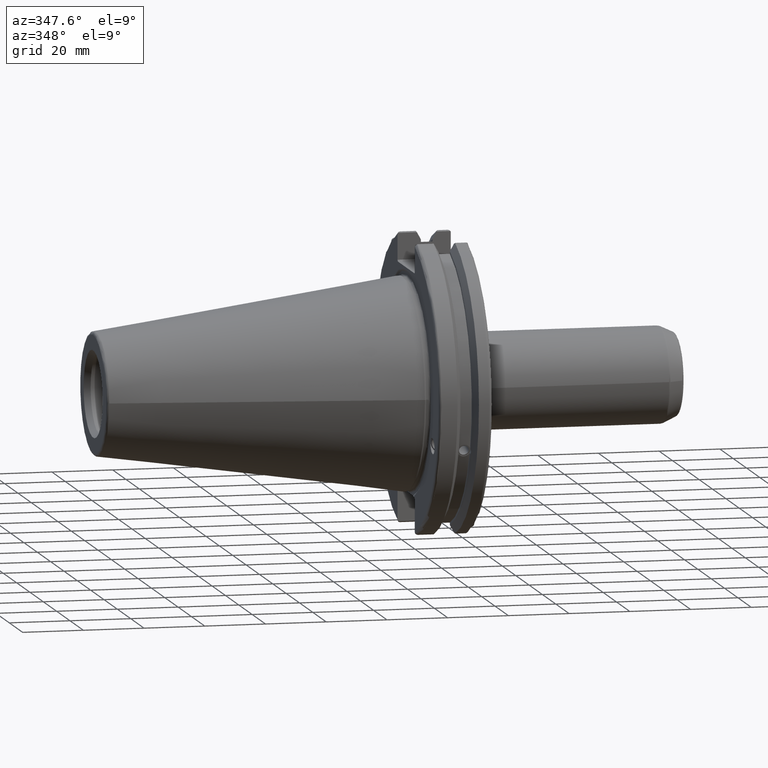
[diagram: clean part render]
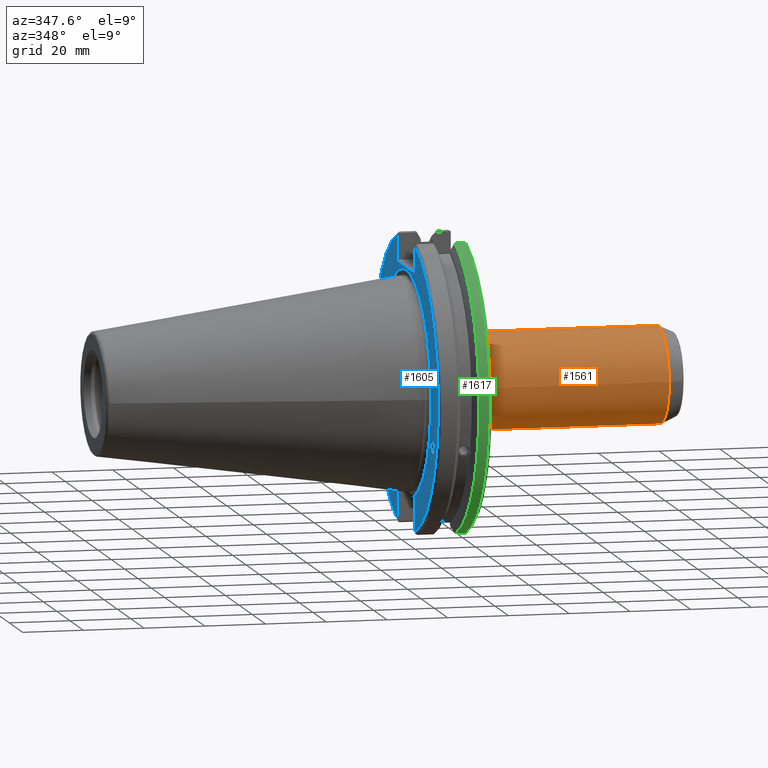
[diagram: same view with three faces highlighted in distinct colors, each labeled with its STEP entity id]
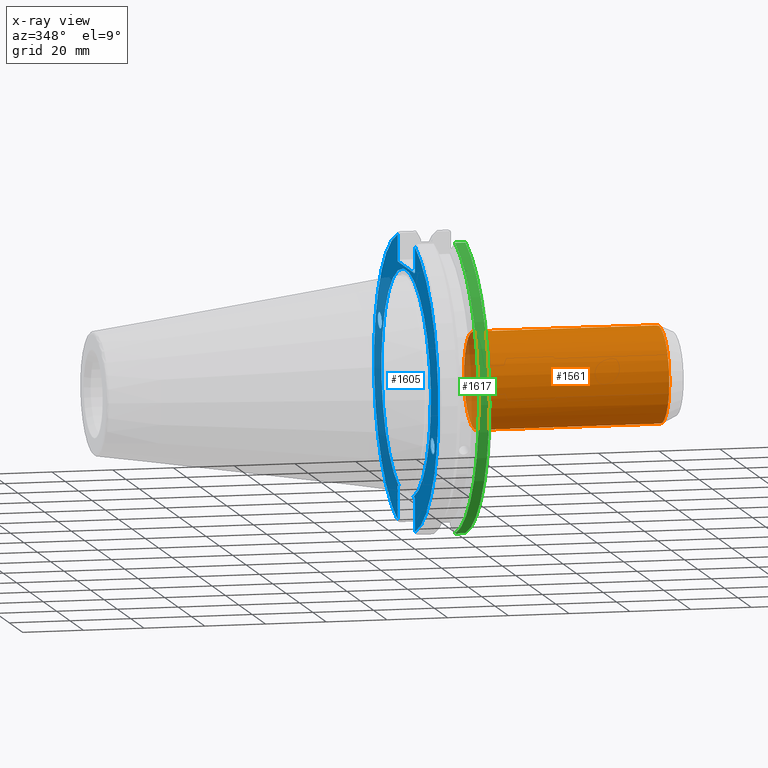
[diagram: x-ray of the same camera — body ghosted, the three highlighted faces saturated]
A machine part, auxiliary view with three faces highlighted in distinct colors.
The next image is the same camera in x-ray (body ghosted, the three faces saturated) — at least one of them is partly hidden behind the body in this view.
Their STEP definitions:

[orange] entity #1561 — the highlighted cylindrical surface (bore or boss wall) has radius 15.875 mm, axis along (1, 0, 0).
#62=FACE_BOUND('',#222,.T.);
#128=FACE_OUTER_BOUND('',#221,.T.);
#221=EDGE_LOOP('',(#1084,#1085,#1086,#1087,#1088,#1089));
#222=EDGE_LOOP('',(#1090,#1091));
#322=B_SPLINE_CURVE_WITH_KNOTS('',3,(#2347,#2348,#2349,#2350,#2351,#2352,
#2353,#2354,#2355,#2356,#2357,#2358,#2359,#2360,#2361,#2362,#2363,#2364,
#2365,#2366,#2367,#2368,#2369,#2370,#2371,#2372),.UNSPECIFIED.,.F.,.F.,
(4,2,2,2,2,2,2,2,2,2,2,2,4),(0.,0.223638021490026,0.447276042980052,0.680504531406411,
0.913733019832769,1.14696150825913,1.38018999668549,1.60382801817551,1.82746603966554,
2.05110406115556,2.27474208264559,2.50797057107195,2.74119905949831),
 .UNSPECIFIED.);
#323=B_SPLINE_CURVE_WITH_KNOTS('',3,(#2373,#2374,#2375,#2376,#2377,#2378,
#2379,#2380,#2381,#2382),.UNSPECIFIED.,.F.,.F.,(4,2,2,2,4),(2.74119905949831,
2.97442754792467,3.20765603635103,3.43129405784105,3.65493207933108),
 .UNSPECIFIED.);
#368=LINE('',#2418,#462);
#462=VECTOR('',#1899,15.875);
#566=CIRCLE('',#1688,15.875);
#567=CIRCLE('',#1689,15.875);
#568=CIRCLE('',#1691,15.875);
#569=CIRCLE('',#1692,15.875);
#640=VERTEX_POINT('',#2344);
#641=VERTEX_POINT('',#2346);
#651=VERTEX_POINT('',#2411);
#652=VERTEX_POINT('',#2413);
#653=VERTEX_POINT('',#2417);
#654=VERTEX_POINT('',#2419);
#805=EDGE_CURVE('',#641,#640,#322,.T.);
#806=EDGE_CURVE('',#640,#641,#323,.T.);
#821=EDGE_CURVE('',#651,#652,#566,.T.);
#822=EDGE_CURVE('',#652,#651,#567,.T.);
#823=EDGE_CURVE('',#652,#653,#368,.T.);
#824=EDGE_CURVE('',#654,#653,#568,.T.);
#825=EDGE_CURVE('',#653,#654,#569,.T.);
#1084=ORIENTED_EDGE('',*,*,#822,.F.);
#1085=ORIENTED_EDGE('',*,*,#823,.T.);
#1086=ORIENTED_EDGE('',*,*,#824,.F.);
#1087=ORIENTED_EDGE('',*,*,#825,.F.);
#1088=ORIENTED_EDGE('',*,*,#823,.F.);
#1089=ORIENTED_EDGE('',*,*,#821,.F.);
#1090=ORIENTED_EDGE('',*,*,#805,.T.);
#1091=ORIENTED_EDGE('',*,*,#806,.T.);
#1527=CYLINDRICAL_SURFACE('',#1690,15.875);
#1561=ADVANCED_FACE('',(#128,#62),#1527,.T.);
#1688=AXIS2_PLACEMENT_3D('',#2414,#1893,#1894);
#1689=AXIS2_PLACEMENT_3D('',#2415,#1895,#1896);
#1690=AXIS2_PLACEMENT_3D('',#2416,#1897,#1898);
#1691=AXIS2_PLACEMENT_3D('',#2420,#1900,#1901);
#1692=AXIS2_PLACEMENT_3D('',#2421,#1902,#1903);
#1893=DIRECTION('center_axis',(1.,0.,0.));
#1894=DIRECTION('ref_axis',(0.,-1.,1.83697019872103E-16));
#1895=DIRECTION('center_axis',(1.,0.,0.));
#1896=DIRECTION('ref_axis',(0.,-1.,1.83697019872103E-16));
#1897=DIRECTION('center_axis',(1.,0.,0.));
#1898=DIRECTION('ref_axis',(0.,1.,0.));
#1899=DIRECTION('',(-1.,0.,0.));
#1900=DIRECTION('center_axis',(-1.,0.,0.));
#1901=DIRECTION('ref_axis',(0.,-1.,-1.22464679914735E-16));
#1902=DIRECTION('center_axis',(-1.,0.,0.));
#1903=DIRECTION('ref_axis',(0.,-1.,-1.22464679914735E-16));
#2344=CARTESIAN_POINT('',(63.5,15.875,7.9602041944578E-16));
#2346=CARTESIAN_POINT('',(70.,14.8872625585109,-5.51226255851086));
#2347=CARTESIAN_POINT('Ctrl Pts',(70.,14.8872625585109,-5.51226255851086));
#2348=CARTESIAN_POINT('Ctrl Pts',(70.7454600716334,14.8872625585109,-5.51226255851086));
#2349=CARTESIAN_POINT('Ctrl Pts',(71.5480860638502,14.9322571663102,-5.39544221249029));
#2350=CARTESIAN_POINT('Ctrl Pts',(73.0593581801598,15.1007896007702,-4.90400446616566));
#2351=CARTESIAN_POINT('Ctrl Pts',(73.7682884491082,15.2221580475502,-4.52951935207048));
#2352=CARTESIAN_POINT('Ctrl Pts',(74.9607002478671,15.4657009746322,-3.61407961001827));
#2353=CARTESIAN_POINT('Ctrl Pts',(75.5216193696588,15.6060969416275,-2.99640625039806));
#2354=CARTESIAN_POINT('Ctrl Pts',(76.2920246260831,15.8125351826182,-1.57875007931911));
#2355=CARTESIAN_POINT('Ctrl Pts',(76.5,15.875,-0.777428294754529));
#2356=CARTESIAN_POINT('Ctrl Pts',(76.5,15.875,0.777428294754529));
#2357=CARTESIAN_POINT('Ctrl Pts',(76.2920246260831,15.8125351826182,1.57875007931911));
#2358=CARTESIAN_POINT('Ctrl Pts',(75.5216193696588,15.6060969416275,2.99640625039806));
#2359=CARTESIAN_POINT('Ctrl Pts',(74.9607002478671,15.4657009746322,3.61407961001827));
#2360=CARTESIAN_POINT('Ctrl Pts',(73.7682884491082,15.2221580475502,4.52951935207048));
#2361=CARTESIAN_POINT('Ctrl Pts',(73.0593581801598,15.1007896007702,4.90400446616566));
#2362=CARTESIAN_POINT('Ctrl Pts',(71.5480860638502,14.9322571663102,5.39544221249029));
#2363=CARTESIAN_POINT('Ctrl Pts',(70.7454600716334,14.8872625585109,5.51226255851086));
#2364=CARTESIAN_POINT('Ctrl Pts',(69.2545399283666,14.8872625585109,5.51226255851086));
#2365=CARTESIAN_POINT('Ctrl Pts',(68.4519139361498,14.9322571663102,5.39544221249029));
#2366=CARTESIAN_POINT('Ctrl Pts',(66.9406418198402,15.1007896007702,4.90400446616566));
#2367=CARTESIAN_POINT('Ctrl Pts',(66.2317115508918,15.2221580475502,4.52951935207048));
#2368=CARTESIAN_POINT('Ctrl Pts',(65.0392997521329,15.4657009746322,3.61407961001827));
#2369=CARTESIAN_POINT('Ctrl Pts',(64.4783806303412,15.6060969416275,2.99640625039806));
#2370=CARTESIAN_POINT('Ctrl Pts',(63.7079753739169,15.8125351826182,1.5787500793191));
#2371=CARTESIAN_POINT('Ctrl Pts',(63.5,15.875,0.777428294754531));
#2372=CARTESIAN_POINT('Ctrl Pts',(63.5,15.875,1.45716771982052E-15));
#2373=CARTESIAN_POINT('Ctrl Pts',(63.5,15.875,6.93889390390723E-16));
#2374=CARTESIAN_POINT('Ctrl Pts',(63.5,15.875,-0.777428294754529));
#2375=CARTESIAN_POINT('Ctrl Pts',(63.7079753739169,15.8125351826182,-1.5787500793191));
#2376=CARTESIAN_POINT('Ctrl Pts',(64.4783806303412,15.6060969416275,-2.99640625039805));
#2377=CARTESIAN_POINT('Ctrl Pts',(65.0392997521329,15.4657009746322,-3.61407961001827));
#2378=CARTESIAN_POINT('Ctrl Pts',(66.2317115508918,15.2221580475502,-4.52951935207048));
#2379=CARTESIAN_POINT('Ctrl Pts',(66.9406418198402,15.1007896007702,-4.90400446616566));
#2380=CARTESIAN_POINT('Ctrl Pts',(68.4519139361498,14.9322571663102,-5.39544221249029));
#2381=CARTESIAN_POINT('Ctrl Pts',(69.2545399283666,14.8872625585109,-5.51226255851086));
#2382=CARTESIAN_POINT('Ctrl Pts',(70.,14.8872625585109,-5.51226255851086));
#2411=CARTESIAN_POINT('',(84.6851014011469,-1.94412679364642E-15,15.875));
#2413=CARTESIAN_POINT('',(84.6851014011469,-15.875,-1.94412679364642E-15));
#2414=CARTESIAN_POINT('Origin',(84.6851014011469,0.,0.));
#2415=CARTESIAN_POINT('Origin',(84.6851014011469,0.,0.));
#2416=CARTESIAN_POINT('Origin',(51.9783980318949,0.,0.));
#2417=CARTESIAN_POINT('',(24.05,-15.875,-1.94412679364642E-15));
#2418=CARTESIAN_POINT('',(51.9783980318949,-15.875,-1.94412679364642E-15));
#2419=CARTESIAN_POINT('',(24.05,-1.94412679364642E-15,-15.875));
#2420=CARTESIAN_POINT('Origin',(24.05,0.,0.));
#2421=CARTESIAN_POINT('Origin',(24.05,0.,0.));

[blue] entity #1605 — the highlighted planar face has unit normal (-1, 0, 0).
#33=ELLIPSE('',#1726,3.05193647190365,2.50000000000001);
#34=ELLIPSE('',#1761,3.05193647190365,2.50000000000001);
#74=FACE_BOUND('',#278,.T.);
#75=FACE_BOUND('',#279,.T.);
#99=PLANE('',#1780);
#172=FACE_OUTER_BOUND('',#277,.T.);
#277=EDGE_LOOP('',(#1345,#1346,#1347,#1348,#1349,#1350,#1351,#1352,#1353,
#1354,#1355,#1356,#1357,#1358));
#278=EDGE_LOOP('',(#1359));
#279=EDGE_LOOP('',(#1360));
#412=LINE('',#3057,#506);
#415=LINE('',#3107,#509);
#423=LINE('',#3143,#517);
#427=LINE('',#3211,#521);
#428=LINE('',#3213,#522);
#429=LINE('',#3215,#523);
#430=LINE('',#3216,#524);
#431=LINE('',#3218,#525);
#432=LINE('',#3220,#526);
#433=LINE('',#3224,#527);
#434=LINE('',#3225,#528);
#506=VECTOR('',#2093,10.);
#509=VECTOR('',#2102,10.);
#517=VECTOR('',#2112,10.);
#521=VECTOR('',#2138,10.);
#522=VECTOR('',#2139,10.);
#523=VECTOR('',#2140,10.);
#524=VECTOR('',#2141,10.);
#525=VECTOR('',#2142,10.);
#526=VECTOR('',#2143,10.);
#527=VECTOR('',#2146,10.);
#528=VECTOR('',#2147,10.);
#608=CIRCLE('',#1772,48.2125);
#611=CIRCLE('',#1779,48.2125);
#612=CIRCLE('',#1781,37.);
#699=VERTEX_POINT('',#2744);
#738=VERTEX_POINT('',#3008);
#745=VERTEX_POINT('',#3054);
#746=VERTEX_POINT('',#3056);
#752=VERTEX_POINT('',#3104);
#753=VERTEX_POINT('',#3106);
#761=VERTEX_POINT('',#3135);
#762=VERTEX_POINT('',#3142);
#770=VERTEX_POINT('',#3201);
#771=VERTEX_POINT('',#3210);
#772=VERTEX_POINT('',#3212);
#773=VERTEX_POINT('',#3214);
#774=VERTEX_POINT('',#3217);
#775=VERTEX_POINT('',#3219);
#776=VERTEX_POINT('',#3221);
#777=VERTEX_POINT('',#3223);
#881=EDGE_CURVE('',#699,#699,#33,.T.);
#934=EDGE_CURVE('',#738,#738,#34,.T.);
#944=EDGE_CURVE('',#746,#745,#412,.T.);
#954=EDGE_CURVE('',#753,#752,#415,.T.);
#966=EDGE_CURVE('',#762,#761,#423,.T.);
#971=EDGE_CURVE('',#753,#761,#608,.T.);
#980=EDGE_CURVE('',#746,#770,#611,.T.);
#982=EDGE_CURVE('',#771,#752,#427,.T.);
#983=EDGE_CURVE('',#771,#772,#428,.T.);
#984=EDGE_CURVE('',#773,#772,#429,.T.);
#985=EDGE_CURVE('',#773,#770,#430,.T.);
#986=EDGE_CURVE('',#774,#745,#431,.T.);
#987=EDGE_CURVE('',#774,#775,#432,.T.);
#988=EDGE_CURVE('',#775,#776,#612,.T.);
#989=EDGE_CURVE('',#776,#777,#433,.T.);
#990=EDGE_CURVE('',#762,#777,#434,.T.);
#1345=ORIENTED_EDGE('',*,*,#971,.F.);
#1346=ORIENTED_EDGE('',*,*,#954,.T.);
#1347=ORIENTED_EDGE('',*,*,#982,.F.);
#1348=ORIENTED_EDGE('',*,*,#983,.T.);
#1349=ORIENTED_EDGE('',*,*,#984,.F.);
#1350=ORIENTED_EDGE('',*,*,#985,.T.);
#1351=ORIENTED_EDGE('',*,*,#980,.F.);
#1352=ORIENTED_EDGE('',*,*,#944,.T.);
#1353=ORIENTED_EDGE('',*,*,#986,.F.);
#1354=ORIENTED_EDGE('',*,*,#987,.T.);
#1355=ORIENTED_EDGE('',*,*,#988,.T.);
#1356=ORIENTED_EDGE('',*,*,#989,.T.);
#1357=ORIENTED_EDGE('',*,*,#990,.F.);
#1358=ORIENTED_EDGE('',*,*,#966,.T.);
#1359=ORIENTED_EDGE('',*,*,#881,.T.);
#1360=ORIENTED_EDGE('',*,*,#934,.T.);
#1605=ADVANCED_FACE('',(#172,#74,#75),#99,.T.);
#1726=AXIS2_PLACEMENT_3D('',#2746,#1994,#1995);
#1761=AXIS2_PLACEMENT_3D('',#3010,#2080,#2081);
#1772=AXIS2_PLACEMENT_3D('',#3165,#2118,#2119);
#1779=AXIS2_PLACEMENT_3D('',#3202,#2134,#2135);
#1780=AXIS2_PLACEMENT_3D('',#3209,#2136,#2137);
#1781=AXIS2_PLACEMENT_3D('',#3222,#2144,#2145);
#1994=DIRECTION('center_axis',(1.,0.,0.));
#1995=DIRECTION('ref_axis',(0.,-0.939692620785909,-0.342020143325667));
#2080=DIRECTION('center_axis',(1.,0.,0.));
#2081=DIRECTION('ref_axis',(0.,0.939692620785909,0.342020143325667));
#2093=DIRECTION('',(0.,0.,1.));
#2102=DIRECTION('',(0.,0.,-1.));
#2112=DIRECTION('',(0.,0.,-1.));
#2118=DIRECTION('center_axis',(1.,0.,0.));
#2119=DIRECTION('ref_axis',(0.,-1.,1.60812264967664E-16));
#2134=DIRECTION('center_axis',(1.,0.,0.));
#2135=DIRECTION('ref_axis',(0.,1.,-6.12323399573677E-17));
#2136=DIRECTION('center_axis',(-1.,0.,0.));
#2137=DIRECTION('ref_axis',(0.,0.,1.));
#2138=DIRECTION('',(0.,-0.707106781186549,0.707106781186546));
#2139=DIRECTION('',(0.,1.,0.));
#2140=DIRECTION('',(0.,-0.707106781186549,-0.707106781186546));
#2141=DIRECTION('',(0.,0.,1.));
#2142=DIRECTION('',(0.,0.707106781186548,-0.707106781186548));
#2143=DIRECTION('',(0.,-1.,0.));
#2144=DIRECTION('center_axis',(1.,0.,0.));
#2145=DIRECTION('ref_axis',(0.,0.,-1.));
#2146=DIRECTION('',(0.,-1.,0.));
#2147=DIRECTION('',(0.,0.707106781186549,0.707106781186546));
#2744=CARTESIAN_POINT('',(1.5,-36.5992078912529,-13.3210222701368));
#2746=CARTESIAN_POINT('Origin',(1.5,-39.4670900730082,-14.3648460196781));
#3008=CARTESIAN_POINT('',(1.5,36.5992078912529,13.3210222701368));
#3010=CARTESIAN_POINT('Origin',(1.5,39.4670900730082,14.3648460196781));
#3054=CARTESIAN_POINT('',(1.5,12.95,-35.806));
#3056=CARTESIAN_POINT('',(1.5,12.95,-46.4407434937254));
#3057=CARTESIAN_POINT('',(1.5,12.95,-17.653));
#3104=CARTESIAN_POINT('',(1.5,-12.95,38.219));
#3106=CARTESIAN_POINT('',(1.5,-12.95,46.4407434937254));
#3107=CARTESIAN_POINT('',(1.5,-12.95,18.8595));
#3135=CARTESIAN_POINT('',(1.5,-12.95,-46.4407434937254));
#3142=CARTESIAN_POINT('',(1.5,-12.95,-35.806));
#3143=CARTESIAN_POINT('',(1.5,-12.95,-17.653));
#3165=CARTESIAN_POINT('Origin',(1.5,0.,0.));
#3201=CARTESIAN_POINT('',(1.5,12.95,46.4407434937254));
#3202=CARTESIAN_POINT('Origin',(1.5,0.,0.));
#3209=CARTESIAN_POINT('Origin',(1.5,49.2125,0.));
#3210=CARTESIAN_POINT('',(1.5,-12.45,37.719));
#3211=CARTESIAN_POINT('',(1.5,12.2703750000001,12.998625));
#3212=CARTESIAN_POINT('',(1.5,12.45,37.719));
#3213=CARTESIAN_POINT('',(1.5,24.60625,37.719));
#3214=CARTESIAN_POINT('',(1.5,12.95,38.219));
#3215=CARTESIAN_POINT('',(1.5,12.335875,37.604875));
#3216=CARTESIAN_POINT('',(1.5,12.95,18.8595));
#3217=CARTESIAN_POINT('',(1.5,12.45,-35.306));
#3218=CARTESIAN_POINT('',(1.5,12.939125,-35.795125));
#3219=CARTESIAN_POINT('',(1.49999999999999,11.0673557817575,-35.306));
#3220=CARTESIAN_POINT('',(1.5,24.60625,-35.306));
#3221=CARTESIAN_POINT('',(1.5,-11.0673557817575,-35.306));
#3222=CARTESIAN_POINT('Origin',(1.5,0.,0.));
#3223=CARTESIAN_POINT('',(1.5,-12.45,-35.306));
#3224=CARTESIAN_POINT('',(1.5,24.60625,-35.306));
#3225=CARTESIAN_POINT('',(1.5,11.6671250000001,-11.188875));

[green] entity #1617 — the highlighted cylindrical surface (partial cylindrical patch) has radius 49.2125 mm, axis along (1, 0, 0).
#184=FACE_OUTER_BOUND('',#292,.T.);
#292=EDGE_LOOP('',(#1417,#1418,#1419,#1420));
#448=LINE('',#3276,#542);
#449=LINE('',#3278,#543);
#542=VECTOR('',#2195,10.);
#543=VECTOR('',#2198,10.);
#588=CIRCLE('',#1729,49.2125);
#606=CIRCLE('',#1767,49.2125);
#702=VERTEX_POINT('',#2754);
#703=VERTEX_POINT('',#2758);
#750=VERTEX_POINT('',#3084);
#751=VERTEX_POINT('',#3093);
#885=EDGE_CURVE('',#703,#702,#588,.T.);
#951=EDGE_CURVE('',#750,#751,#606,.T.);
#1013=EDGE_CURVE('',#751,#702,#448,.T.);
#1014=EDGE_CURVE('',#703,#750,#449,.T.);
#1417=ORIENTED_EDGE('',*,*,#951,.F.);
#1418=ORIENTED_EDGE('',*,*,#1014,.F.);
#1419=ORIENTED_EDGE('',*,*,#885,.T.);
#1420=ORIENTED_EDGE('',*,*,#1013,.F.);
#1544=CYLINDRICAL_SURFACE('',#1799,49.2125);
#1617=ADVANCED_FACE('',(#184),#1544,.T.);
#1729=AXIS2_PLACEMENT_3D('',#2759,#2000,#2001);
#1767=AXIS2_PLACEMENT_3D('',#3094,#2097,#2098);
#1799=AXIS2_PLACEMENT_3D('',#3277,#2196,#2197);
#2000=DIRECTION('center_axis',(1.,0.,0.));
#2001=DIRECTION('ref_axis',(0.,0.,-1.));
#2097=DIRECTION('center_axis',(1.,0.,0.));
#2098=DIRECTION('ref_axis',(0.,-1.,1.60812264967664E-16));
#2195=DIRECTION('',(-1.,0.,0.));
#2196=DIRECTION('center_axis',(1.,0.,0.));
#2197=DIRECTION('ref_axis',(0.,-1.,1.22464679914735E-16));
#2198=DIRECTION('',(1.,0.,0.));
#2754=CARTESIAN_POINT('',(14.6531090340487,-13.4317035994433,-47.3440544806494));
#2758=CARTESIAN_POINT('',(14.6531090340487,-13.4317035994433,47.3440544806494));
#2759=CARTESIAN_POINT('Origin',(14.6531090340487,0.,0.));
#3084=CARTESIAN_POINT('',(18.05,-13.4317035994433,47.3440544806494));
#3093=CARTESIAN_POINT('',(18.05,-13.4317035994433,-47.3440544806494));
#3094=CARTESIAN_POINT('Origin',(18.05,0.,0.));
#3276=CARTESIAN_POINT('',(16.8515545170244,-13.4317035994433,-47.3440544806494));
#3277=CARTESIAN_POINT('Origin',(16.8515545170244,0.,0.));
#3278=CARTESIAN_POINT('',(16.8515545170244,-13.4317035994433,47.3440544806494));